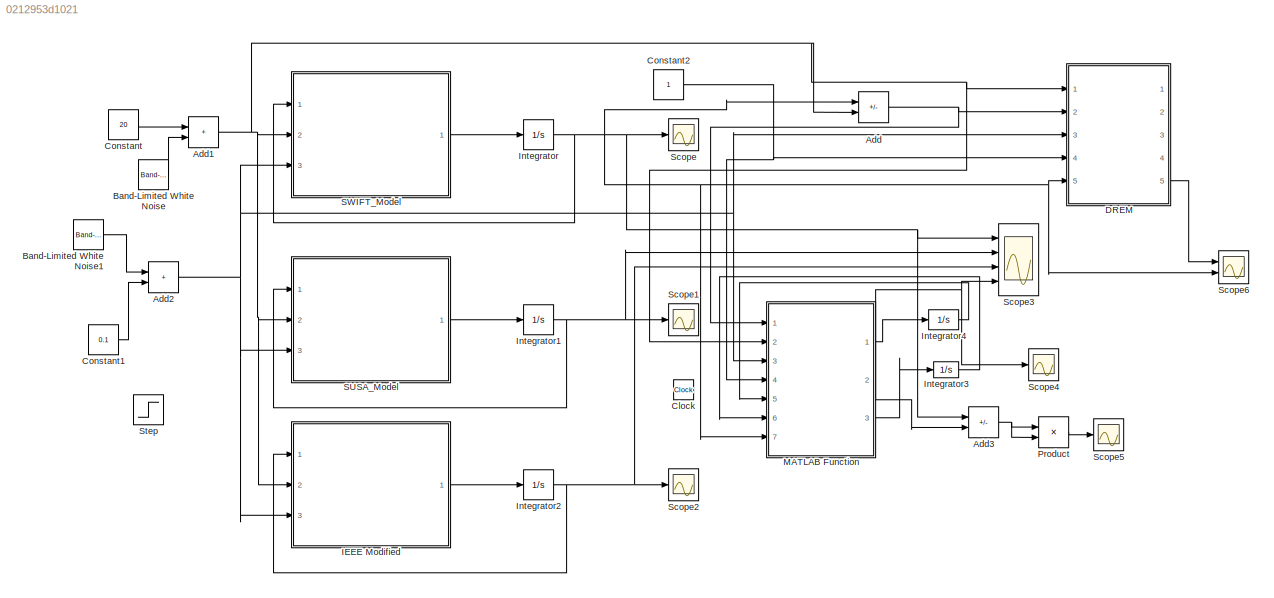
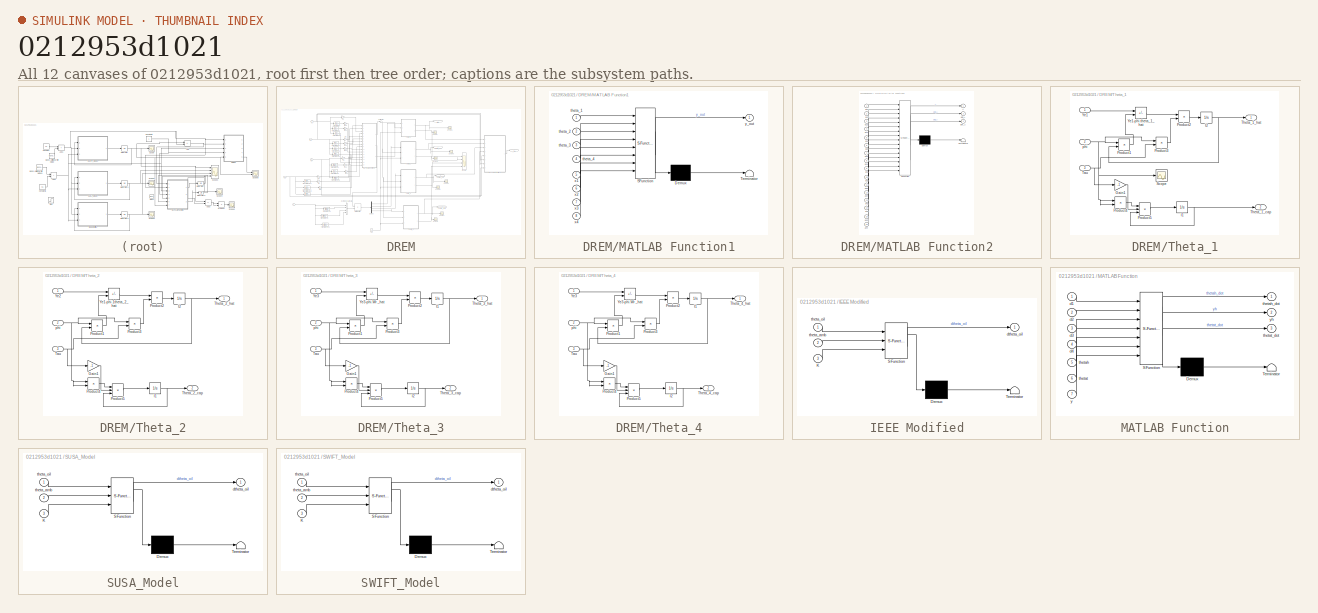
[diagram: thumbnail index - all 12 canvases of the model, root first then tree order]
MODEL slx_0212953d1021
KIND model
CONFIG AbsTol = auto
CONFIG FixedStep = auto
CONFIG InitFcn = d1=1;\nd2=1;\nd3=3\nd4=3;\nd5 = 5;\nd6 = 5;\nTau=9
CONFIG MaxStep = auto
CONFIG MinStep = auto
CONFIG RelTol = 1e-3
CONFIG SampleTimeConstraint = Unconstrained
CONFIG Solver = VariableStepAuto
CONFIG SolverMode = SingleTasking
CONFIG SolverName = VariableStepAuto
CONFIG StartTime = 0.0
CONFIG StopTime = 2000
BLOCK [Sum] Add
  IconShape = rectangular
  Inputs = +-
  Ports = [2, 1]
BLOCK [Sum] Add1
  IconShape = rectangular
  Ports = [2, 1]
BLOCK [Sum] Add2
  IconShape = rectangular
  Ports = [2, 1]
BLOCK [Sum] Add3
  IconShape = rectangular
  Inputs = +-
  Ports = [2, 1]
BLOCK [Reference] Band-Limited White Noise  REF=simulink/Sources/Band-Limited
White Noise
  Ports = [0, 1]
  SourceBlock = simulink/Sources/Band-Limited\nWhite Noise
  SourceType = Band-Limited White Noise.
BLOCK [Reference] Band-Limited White Noise1  REF=simulink/Sources/Band-Limited
White Noise
  Ports = [0, 1]
  SourceBlock = simulink/Sources/Band-Limited\nWhite Noise
  SourceType = Band-Limited White Noise.
BLOCK [Clock] Clock
BLOCK [Constant] Constant
  Value = 20
BLOCK [Constant] Constant1
  Value = 0.1
BLOCK [Constant] Constant2
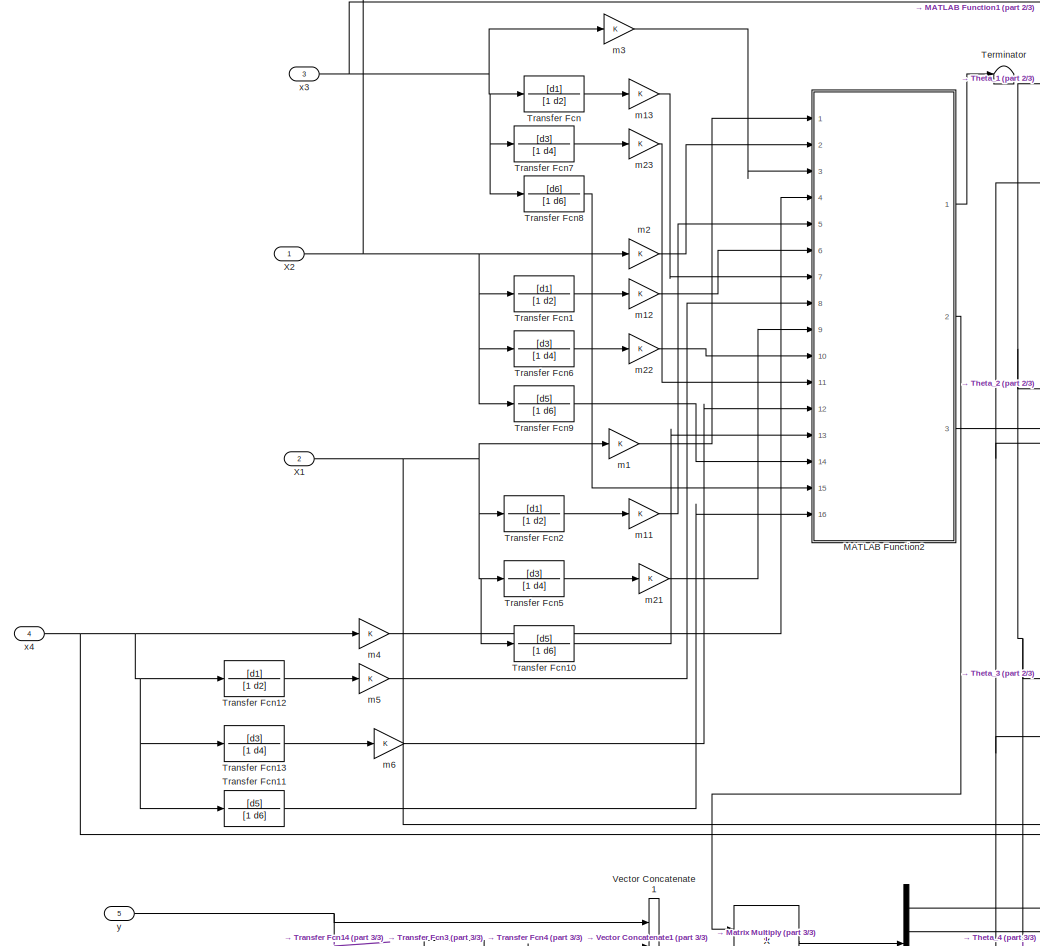
[diagram: DREM - part 1/3, left side, full height]
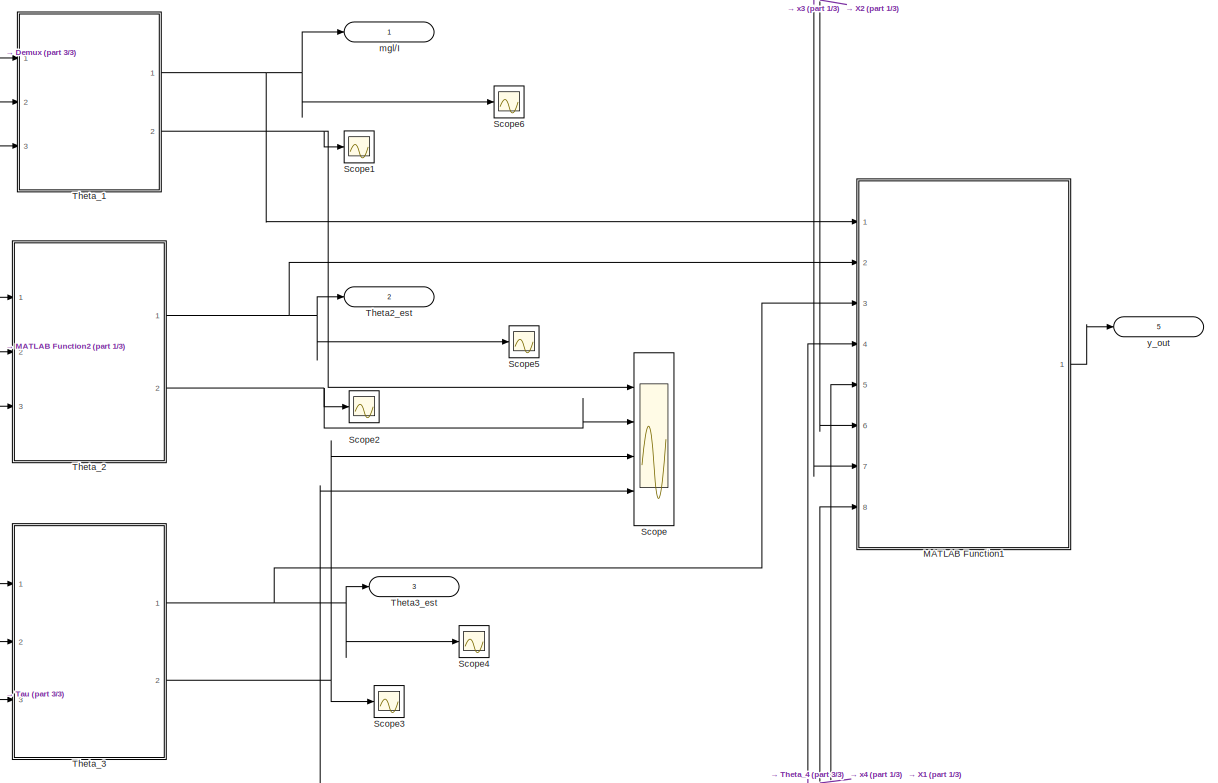
[diagram: DREM - part 2/3, middle right region]
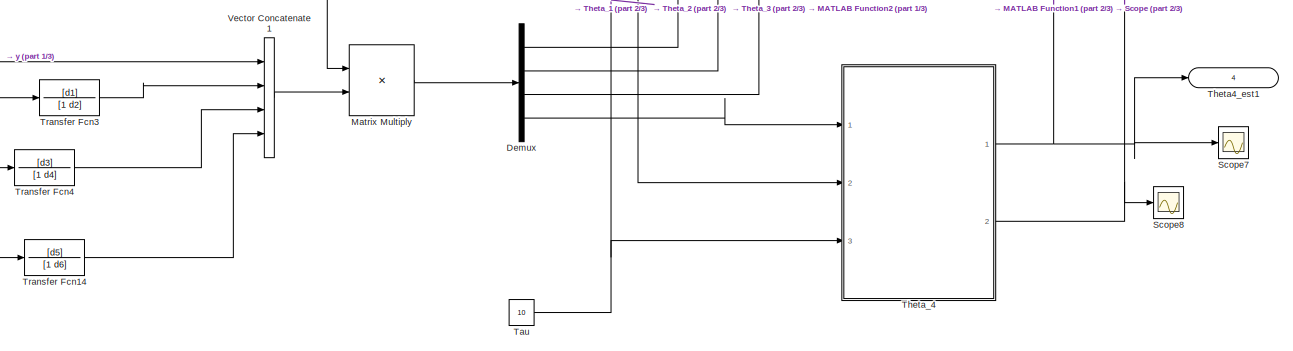
[diagram: DREM - part 3/3, bottom center region]
BLOCK [SubSystem] DREM
  Ports = [5, 5]
  RequestExecContextInheritance = off
BLOCK [Demux] DREM/Demux
  Ports = [1, 4]
BLOCK [SubSystem] DREM/MATLAB Function1
  ErrorFcn = Stateflow.Translate.translate
  PermitHierarchicalResolution = ExplicitOnly
  Ports = [8, 1]
  RequestExecContextInheritance = off
  SFBlockType = MATLAB Function
  TreatAsAtomicUnit = on
BLOCK [Demux] DREM/MATLAB Function1/ Demux 
  Outputs = 1
  Ports = [1, 1]
BLOCK [S-Function] DREM/MATLAB Function1/ SFunction 
  EnableBusSupport = on
  FunctionName = sf_sfun
  PortCounts = [8 2]
  Ports = [8, 2]
  SFunctionDeploymentMode = off
  Tag = Stateflow S-Function Xmer_Susa_swift_2016a 5
BLOCK [Terminator] DREM/MATLAB Function1/ Terminator 
BLOCK [Inport] DREM/MATLAB Function1/theta_1
BLOCK [Inport] DREM/MATLAB Function1/theta_2
  Port = 2
BLOCK [Inport] DREM/MATLAB Function1/theta_3
  Port = 3
BLOCK [Inport] DREM/MATLAB Function1/theta_4
  Port = 4
BLOCK [Inport] DREM/MATLAB Function1/x1
  Port = 5
BLOCK [Inport] DREM/MATLAB Function1/x2
  Port = 6
BLOCK [Inport] DREM/MATLAB Function1/x3
  Port = 7
BLOCK [Inport] DREM/MATLAB Function1/x4
  Port = 8
BLOCK [Outport] DREM/MATLAB Function1/y_out
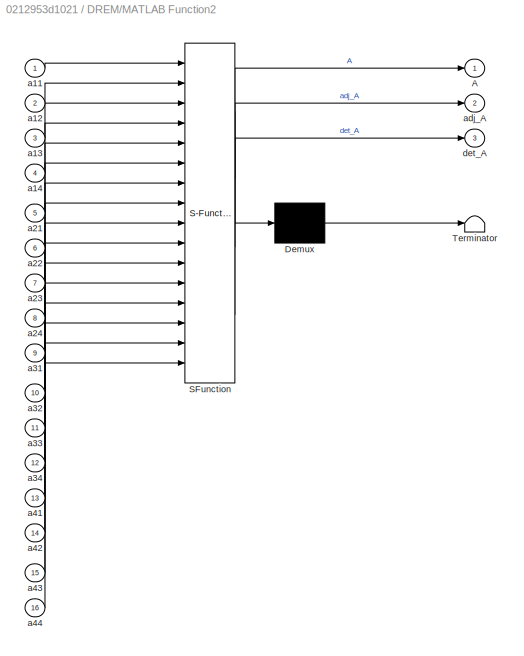
BLOCK [SubSystem] DREM/MATLAB Function2
  ErrorFcn = Stateflow.Translate.translate
  PermitHierarchicalResolution = ExplicitOnly
  Ports = [16, 3]
  RequestExecContextInheritance = off
  SFBlockType = MATLAB Function
  TreatAsAtomicUnit = on
BLOCK [Demux] DREM/MATLAB Function2/ Demux 
  Outputs = 1
  Ports = [1, 1]
BLOCK [S-Function] DREM/MATLAB Function2/ SFunction 
  EnableBusSupport = on
  FunctionName = sf_sfun
  PortCounts = [16 4]
  Ports = [16, 4]
  SFunctionDeploymentMode = off
  Tag = Stateflow S-Function Xmer_Susa_swift_2016a 4
BLOCK [Terminator] DREM/MATLAB Function2/ Terminator 
BLOCK [Outport] DREM/MATLAB Function2/A
BLOCK [Inport] DREM/MATLAB Function2/a11
BLOCK [Inport] DREM/MATLAB Function2/a12
  Port = 2
BLOCK [Inport] DREM/MATLAB Function2/a13
  Port = 3
BLOCK [Inport] DREM/MATLAB Function2/a14
  Port = 4
BLOCK [Inport] DREM/MATLAB Function2/a21
  Port = 5
BLOCK [Inport] DREM/MATLAB Function2/a22
  Port = 6
BLOCK [Inport] DREM/MATLAB Function2/a23
  Port = 7
BLOCK [Inport] DREM/MATLAB Function2/a24
  Port = 8
BLOCK [Inport] DREM/MATLAB Function2/a31
  Port = 9
BLOCK [Inport] DREM/MATLAB Function2/a32
  Port = 10
BLOCK [Inport] DREM/MATLAB Function2/a33
  Port = 11
BLOCK [Inport] DREM/MATLAB Function2/a34
  Port = 12
BLOCK [Inport] DREM/MATLAB Function2/a41
  Port = 13
BLOCK [Inport] DREM/MATLAB Function2/a42
  Port = 14
BLOCK [Inport] DREM/MATLAB Function2/a43
  Port = 15
BLOCK [Inport] DREM/MATLAB Function2/a44
  Port = 16
BLOCK [Outport] DREM/MATLAB Function2/adj_A
  Port = 2
BLOCK [Outport] DREM/MATLAB Function2/det_A
  Port = 3
BLOCK [Product] DREM/Matrix Multiply
  Multiplication = Matrix(*)
  Ports = [2, 1]
BLOCK [Scope] DREM/Scope
  Floating = off
  NumInputPorts = 4
  Ports = [4]
  ScopeSpecificationString = Simulink.scopes.TimeScopeBlockCfg('CurrentConfiguration', extmgr.ConfigurationSet(extmgr.Configuration('Core','General UI',true),extmgr.Configuration('Core','Source UI',true),extmgr.Configuration('Sources','WiredSimulink',true),extmgr.Configuration('Visuals','Time Domain',true,'SerializedDisplays',{struct('MinYLimReal','-1500.00002','MaxYLimReal','13500.00017','YLabelReal','','MinYLimMag','  0.000...<+1490ch>
BLOCK [Scope] DREM/Scope1
  Floating = off
  NumInputPorts = 1
  Ports = [1]
  ScopeSpecificationString = Simulink.scopes.TimeScopeBlockCfg('CurrentConfiguration', extmgr.ConfigurationSet(extmgr.Configuration('Core','General UI',true),extmgr.Configuration('Core','Source UI',true),extmgr.Configuration('Sources','WiredSimulink',true,'DataLoggingVariableName','ScopeData1'),extmgr.Configuration('Visuals','Time Domain',true,'SerializedDisplays',{struct('MinYLimReal','9.7996','MaxYLimReal','9.80004','YLabel...<+1461ch>
BLOCK [Scope] DREM/Scope2
  Floating = off
  NumInputPorts = 1
  Ports = [1]
  ScopeSpecificationString = Simulink.scopes.TimeScopeBlockCfg('CurrentConfiguration', extmgr.ConfigurationSet(extmgr.Configuration('Core','General UI',true),extmgr.Configuration('Core','Source UI',true),extmgr.Configuration('Sources','WiredSimulink',true,'DataLoggingVariableName','ScopeData2'),extmgr.Configuration('Visuals','Time Domain',true,'SerializedDisplays',{struct('MinYLimReal','-1.00002','MaxYLimReal','-0.99985','YLa...<+1370ch>
BLOCK [Scope] DREM/Scope3
  Floating = off
  NumInputPorts = 1
  Ports = [1]
  ScopeSpecificationString = Simulink.scopes.TimeScopeBlockCfg('CurrentConfiguration', extmgr.ConfigurationSet(extmgr.Configuration('Core','General UI',true),extmgr.Configuration('Core','Source UI',true),extmgr.Configuration('Sources','WiredSimulink',true,'DataLoggingVariableName','ScopeData3'),extmgr.Configuration('Visuals','Time Domain',true,'SerializedDisplays',{struct('MinYLimReal','11999.99966','MaxYLimReal','12000.00004...<+1497ch>
BLOCK [Scope] DREM/Scope4
  Floating = off
  NumInputPorts = 1
  Ports = [1]
  ScopeSpecificationString = Simulink.scopes.TimeScopeBlockCfg('CurrentConfiguration', extmgr.ConfigurationSet(extmgr.Configuration('Core','General UI',true),extmgr.Configuration('Core','Source UI',true),extmgr.Configuration('Sources','WiredSimulink',true,'DataLoggingVariableName','ScopeData1'),extmgr.Configuration('Visuals','Time Domain',true,'SerializedDisplays',{struct('MinYLimReal','-0.0000016','MaxYLimReal','0.0000026','...<+1508ch>
BLOCK [Scope] DREM/Scope5
  Floating = off
  NumInputPorts = 1
  Ports = [1]
  ScopeSpecificationString = Simulink.scopes.TimeScopeBlockCfg('CurrentConfiguration', extmgr.ConfigurationSet(extmgr.Configuration('Core','General UI',true),extmgr.Configuration('Core','Source UI',true),extmgr.Configuration('Sources','WiredSimulink',true,'DataLoggingVariableName','ScopeData2'),extmgr.Configuration('Visuals','Time Domain',true,'SerializedDisplays',{struct('MinYLimReal','-0.125','MaxYLimReal','1.125','YLabelRe...<+1408ch>
BLOCK [Scope] DREM/Scope6
  Floating = off
  NumInputPorts = 1
  Ports = [1]
  ScopeSpecificationString = Simulink.scopes.TimeScopeBlockCfg('CurrentConfiguration', extmgr.ConfigurationSet(extmgr.Configuration('Core','General UI',true),extmgr.Configuration('Core','Source UI',true),extmgr.Configuration('Sources','WiredSimulink',true,'DataLoggingVariableName','ScopeData3'),extmgr.Configuration('Visuals','Time Domain',true,'SerializedDisplays',{struct('MinYLimReal','-0.125','MaxYLimReal','1.12501','YLabel...<+1417ch>
BLOCK [Scope] DREM/Scope7
  Floating = off
  NumInputPorts = 1
  Ports = [1]
  ScopeSpecificationString = Simulink.scopes.TimeScopeBlockCfg('CurrentConfiguration', extmgr.ConfigurationSet(extmgr.Configuration('Core','General UI',true),extmgr.Configuration('Core','Source UI',true),extmgr.Configuration('Sources','WiredSimulink',true,'DataLoggingVariableName','ScopeData1'),extmgr.Configuration('Visuals','Time Domain',true,'SerializedDisplays',{struct('MinYLimReal','-0.000008','MaxYLimReal','0.000007','YL...<+1500ch>
BLOCK [Scope] DREM/Scope8
  Floating = off
  NumInputPorts = 1
  Ports = [1]
  ScopeSpecificationString = Simulink.scopes.TimeScopeBlockCfg('CurrentConfiguration', extmgr.ConfigurationSet(extmgr.Configuration('Core','General UI',true),extmgr.Configuration('Core','Source UI',true),extmgr.Configuration('Sources','WiredSimulink',true,'DataLoggingVariableName','ScopeData2'),extmgr.Configuration('Visuals','Time Domain',true,'SerializedDisplays',{struct('MinYLimReal','-0.59753','MaxYLimReal','1.18275','YLab...<+1414ch>
BLOCK [Constant] DREM/Tau
  SampleTime = -1
  Value = 10
BLOCK [Terminator] DREM/Terminator
BLOCK [Outport] DREM/Theta2_est
  Port = 2
BLOCK [Outport] DREM/Theta3_est
  Port = 3
BLOCK [Outport] DREM/Theta4_est1
  Port = 4
BLOCK [SubSystem] DREM/Theta_1
  Ports = [3, 2]
  RequestExecContextInheritance = off
BLOCK [Gain] DREM/Theta_1/Gain1
  Gain = -1
BLOCK [Integrator] DREM/Theta_1/I1
  InitialCondition = 9.8
  Ports = [1, 1]
BLOCK [Integrator] DREM/Theta_1/I2
  Ports = [1, 1]
BLOCK [Product] DREM/Theta_1/Product1
  Ports = [2, 1]
BLOCK [Product] DREM/Theta_1/Product2
  Ports = [2, 1]
BLOCK [Product] DREM/Theta_1/Product3
  Ports = [2, 1]
BLOCK [Product] DREM/Theta_1/Product4
  Ports = [2, 1]
BLOCK [Product] DREM/Theta_1/Product5
  Inputs = 3
  Ports = [3, 1]
BLOCK [Scope] DREM/Theta_1/Scope
  Floating = off
  NumInputPorts = 1
  Ports = [1]
  ScopeSpecificationString = Simulink.scopes.TimeScopeBlockCfg('CurrentConfiguration', extmgr.ConfigurationSet(extmgr.Configuration('Core','General UI',true),extmgr.Configuration('Core','Source UI',true),extmgr.Configuration('Sources','WiredSimulink',true,'DataLoggingVariableName','ScopeData13'),extmgr.Configuration('Visuals','Time Domain',true,'SerializedDisplays',{struct('MinYLimReal','-0.000002','MaxYLimReal','0.0000041','...<+1402ch>
BLOCK [Inport] DREM/Theta_1/Tau
  Port = 3
BLOCK [Outport] DREM/Theta_1/Theta_1_cap
  Port = 2
BLOCK [Outport] DREM/Theta_1/Theta_1_hat
BLOCK [Inport] DREM/Theta_1/Ye1
BLOCK [Sum] DREM/Theta_1/Ye1-phi.theta_1_hat
  IconShape = rectangular
  Inputs = +-
  Ports = [2, 1]
BLOCK [Inport] DREM/Theta_1/phi
  Port = 2
BLOCK [SubSystem] DREM/Theta_2
  Ports = [3, 2]
  RequestExecContextInheritance = off
BLOCK [Gain] DREM/Theta_2/Gain1
  Gain = -1
BLOCK [Integrator] DREM/Theta_2/I1
  InitialCondition = 96.27
  Ports = [1, 1]
BLOCK [Integrator] DREM/Theta_2/I2
  Ports = [1, 1]
BLOCK [Product] DREM/Theta_2/Product1
  Ports = [2, 1]
BLOCK [Product] DREM/Theta_2/Product2
  Ports = [2, 1]
BLOCK [Product] DREM/Theta_2/Product3
  Ports = [2, 1]
BLOCK [Product] DREM/Theta_2/Product4
  Ports = [2, 1]
BLOCK [Product] DREM/Theta_2/Product5
  Inputs = 3
  Ports = [3, 1]
BLOCK [Inport] DREM/Theta_2/Tau
  Port = 3
BLOCK [Outport] DREM/Theta_2/Theta_2_cap
  Port = 2
BLOCK [Outport] DREM/Theta_2/Theta_2_hat
BLOCK [Sum] DREM/Theta_2/Ye1-phi.1theta_2_hat
  IconShape = rectangular
  Inputs = +-
  Ports = [2, 1]
BLOCK [Inport] DREM/Theta_2/Ye2
BLOCK [Inport] DREM/Theta_2/phi
  Port = 2
BLOCK [SubSystem] DREM/Theta_3
  Ports = [3, 2]
  RequestExecContextInheritance = off
BLOCK [Gain] DREM/Theta_3/Gain1
  Gain = -1
BLOCK [Integrator] DREM/Theta_3/I1
  Ports = [1, 1]
BLOCK [Integrator] DREM/Theta_3/I2
  InitialCondition = 12000
  Ports = [1, 1]
BLOCK [Product] DREM/Theta_3/Product1
  Ports = [2, 1]
BLOCK [Product] DREM/Theta_3/Product2
  Ports = [2, 1]
BLOCK [Product] DREM/Theta_3/Product3
  Ports = [2, 1]
BLOCK [Product] DREM/Theta_3/Product4
  Ports = [2, 1]
BLOCK [Product] DREM/Theta_3/Product5
  Inputs = 3
  Ports = [3, 1]
BLOCK [Inport] DREM/Theta_3/Tau
  Port = 3
BLOCK [Outport] DREM/Theta_3/Theta_3_cap
  Port = 2
BLOCK [Outport] DREM/Theta_3/Theta_3_hat
BLOCK [Inport] DREM/Theta_3/Ye3
BLOCK [Sum] DREM/Theta_3/Ye3-phi.Wr  _hat
  IconShape = rectangular
  Inputs = +-
  Ports = [2, 1]
BLOCK [Inport] DREM/Theta_3/phi
  Port = 2
BLOCK [SubSystem] DREM/Theta_4
  Ports = [3, 2]
  RequestExecContextInheritance = off
BLOCK [Gain] DREM/Theta_4/Gain1
  Gain = -1
BLOCK [Integrator] DREM/Theta_4/I1
  Ports = [1, 1]
BLOCK [Integrator] DREM/Theta_4/I2
  InitialCondition = 100
  Ports = [1, 1]
BLOCK [Product] DREM/Theta_4/Product1
  Ports = [2, 1]
BLOCK [Product] DREM/Theta_4/Product2
  Ports = [2, 1]
BLOCK [Product] DREM/Theta_4/Product3
  Ports = [2, 1]
BLOCK [Product] DREM/Theta_4/Product4
  Ports = [2, 1]
BLOCK [Product] DREM/Theta_4/Product5
  Inputs = 3
  Ports = [3, 1]
BLOCK [Inport] DREM/Theta_4/Tau
  Port = 3
BLOCK [Outport] DREM/Theta_4/Theta_4_cap
  Port = 2
BLOCK [Outport] DREM/Theta_4/Theta_4_hat
BLOCK [Inport] DREM/Theta_4/Ye3
BLOCK [Sum] DREM/Theta_4/Ye3-phi.Wr  _hat
  IconShape = rectangular
  Inputs = +-
  Ports = [2, 1]
BLOCK [Inport] DREM/Theta_4/phi
  Port = 2
BLOCK [TransferFcn] DREM/Transfer Fcn
  Denominator = [1 d2]
  Numerator = [d1]
BLOCK [TransferFcn] DREM/Transfer Fcn1
  Denominator = [1 d2]
  Numerator = [d1]
BLOCK [TransferFcn] DREM/Transfer Fcn10
  Denominator = [1 d6]
  Numerator = [d5]
BLOCK [TransferFcn] DREM/Transfer Fcn11
  Denominator = [1 d6]
  Numerator = [d5]
BLOCK [TransferFcn] DREM/Transfer Fcn12
  Denominator = [1 d2]
  Numerator = [d1]
BLOCK [TransferFcn] DREM/Transfer Fcn13
  Denominator = [1 d4]
  Numerator = [d3]
BLOCK [TransferFcn] DREM/Transfer Fcn14
  Denominator = [1 d6]
  Numerator = [d5]
BLOCK [TransferFcn] DREM/Transfer Fcn2
  Denominator = [1 d2]
  Numerator = [d1]
BLOCK [TransferFcn] DREM/Transfer Fcn3
  Denominator = [1 d2]
  Numerator = [d1]
BLOCK [TransferFcn] DREM/Transfer Fcn4
  Denominator = [1 d4]
  Numerator = [d3]
BLOCK [TransferFcn] DREM/Transfer Fcn5
  Denominator = [1 d4]
  Numerator = [d3]
BLOCK [TransferFcn] DREM/Transfer Fcn6
  Denominator = [1 d4]
  Numerator = [d3]
BLOCK [TransferFcn] DREM/Transfer Fcn7
  Denominator = [1 d4]
  Numerator = [d3]
BLOCK [TransferFcn] DREM/Transfer Fcn8
  Denominator = [1 d6]
  Numerator = [d6]
BLOCK [TransferFcn] DREM/Transfer Fcn9
  Denominator = [1 d6]
  Numerator = [d5]
BLOCK [Concatenate] DREM/Vector Concatenate1
  NumInputs = 4
  Ports = [4, 1]
BLOCK [Inport] DREM/X1
  Port = 2
BLOCK [Inport] DREM/X2
BLOCK [Gain] DREM/m1
BLOCK [Gain] DREM/m11
BLOCK [Gain] DREM/m12
BLOCK [Gain] DREM/m13
BLOCK [Gain] DREM/m2
BLOCK [Gain] DREM/m21
BLOCK [Gain] DREM/m22
BLOCK [Gain] DREM/m23
BLOCK [Gain] DREM/m3
BLOCK [Gain] DREM/m4
BLOCK [Gain] DREM/m5
BLOCK [Gain] DREM/m6
BLOCK [Outport] DREM/mgl//I
BLOCK [Inport] DREM/x3
  Port = 3
BLOCK [Inport] DREM/x4
  Port = 4
BLOCK [Inport] DREM/y
  Port = 5
BLOCK [Outport] DREM/y_out
  Port = 5
BLOCK [SubSystem] IEEE Modified
  ErrorFcn = Stateflow.Translate.translate
  PermitHierarchicalResolution = ExplicitOnly
  Ports = [3, 1]
  RequestExecContextInheritance = off
  SFBlockType = MATLAB Function
  TreatAsAtomicUnit = on
BLOCK [Demux] IEEE Modified/ Demux 
  Outputs = 1
  Ports = [1, 1]
BLOCK [S-Function] IEEE Modified/ SFunction 
  EnableBusSupport = on
  FunctionName = sf_sfun
  PortCounts = [3 2]
  Ports = [3, 2]
  SFunctionDeploymentMode = off
  Tag = Stateflow S-Function Xmer_Susa_swift_2016a 3
BLOCK [Terminator] IEEE Modified/ Terminator 
BLOCK [Inport] IEEE Modified/K
  Port = 3
BLOCK [Outport] IEEE Modified/dtheta_oil
BLOCK [Inport] IEEE Modified/theta_amb
  Port = 2
BLOCK [Inport] IEEE Modified/theta_oil
BLOCK [Integrator] Integrator
  InitialCondition = 42
  Ports = [1, 1]
BLOCK [Integrator] Integrator1
  InitialCondition = 42
  Ports = [1, 1]
BLOCK [Integrator] Integrator2
  InitialCondition = 42
  Ports = [1, 1]
BLOCK [Integrator] Integrator3
  InitialCondition = 42
  Ports = [1, 1]
BLOCK [Integrator] Integrator4
  InitialCondition = 42
  Ports = [1, 1]
BLOCK [SubSystem] MATLAB Function
  ErrorFcn = Stateflow.Translate.translate
  PermitHierarchicalResolution = ExplicitOnly
  Ports = [7, 3]
  RequestExecContextInheritance = off
  SFBlockType = MATLAB Function
  TreatAsAtomicUnit = on
BLOCK [Demux] MATLAB Function/ Demux 
  Outputs = 1
  Ports = [1, 1]
BLOCK [S-Function] MATLAB Function/ SFunction 
  EnableBusSupport = on
  FunctionName = sf_sfun
  PortCounts = [7 4]
  Ports = [7, 4]
  SFunctionDeploymentMode = off
  Tag = Stateflow S-Function Xmer_Susa_swift_2016a 6
BLOCK [Terminator] MATLAB Function/ Terminator 
BLOCK [Inport] MATLAB Function/d1
BLOCK [Inport] MATLAB Function/d2
  Port = 2
BLOCK [Inport] MATLAB Function/d3
  Port = 3
BLOCK [Inport] MATLAB Function/d4
  Port = 4
BLOCK [Inport] MATLAB Function/thetah
  Port = 5
BLOCK [Outport] MATLAB Function/thetah_dot
BLOCK [Inport] MATLAB Function/thetat
  Port = 6
BLOCK [Outport] MATLAB Function/thetat_dot
  Port = 3
BLOCK [Inport] MATLAB Function/y
  Port = 7
BLOCK [Outport] MATLAB Function/yh
  Port = 2
BLOCK [Product] Product
  Ports = [2, 1]
BLOCK [SubSystem] SUSA_Model
  ErrorFcn = Stateflow.Translate.translate
  PermitHierarchicalResolution = ExplicitOnly
  Ports = [3, 1]
  RequestExecContextInheritance = off
  SFBlockType = MATLAB Function
  TreatAsAtomicUnit = on
BLOCK [Demux] SUSA_Model/ Demux 
  Outputs = 1
  Ports = [1, 1]
BLOCK [S-Function] SUSA_Model/ SFunction 
  EnableBusSupport = on
  FunctionName = sf_sfun
  PortCounts = [3 2]
  Ports = [3, 2]
  SFunctionDeploymentMode = off
  Tag = Stateflow S-Function Xmer_Susa_swift_2016a 1
BLOCK [Terminator] SUSA_Model/ Terminator 
BLOCK [Inport] SUSA_Model/K
  Port = 3
BLOCK [Outport] SUSA_Model/dtheta_oil
BLOCK [Inport] SUSA_Model/theta_amb
  Port = 2
BLOCK [Inport] SUSA_Model/theta_oil
BLOCK [SubSystem] SWIFT_Model
  ErrorFcn = Stateflow.Translate.translate
  PermitHierarchicalResolution = ExplicitOnly
  Ports = [3, 1]
  RequestExecContextInheritance = off
  SFBlockType = MATLAB Function
  TreatAsAtomicUnit = on
BLOCK [Demux] SWIFT_Model/ Demux 
  Outputs = 1
  Ports = [1, 1]
BLOCK [S-Function] SWIFT_Model/ SFunction 
  EnableBusSupport = on
  FunctionName = sf_sfun
  PortCounts = [3 2]
  Ports = [3, 2]
  SFunctionDeploymentMode = off
  Tag = Stateflow S-Function Xmer_Susa_swift_2016a 2
BLOCK [Terminator] SWIFT_Model/ Terminator 
BLOCK [Inport] SWIFT_Model/K
  Port = 3
BLOCK [Outport] SWIFT_Model/dtheta_oil
BLOCK [Inport] SWIFT_Model/theta_amb
  Port = 2
BLOCK [Inport] SWIFT_Model/theta_oil
BLOCK [Scope] Scope
  Floating = off
  NumInputPorts = 1
  Ports = [1]
  ScopeSpecificationString = Simulink.scopes.TimeScopeBlockCfg('CurrentConfiguration', extmgr.ConfigurationSet(extmgr.Configuration('Core','General UI',true),extmgr.Configuration('Core','Source UI',true),extmgr.Configuration('Sources','WiredSimulink',true),extmgr.Configuration('Visuals','Time Domain',true,'SerializedDisplays',{struct('MinYLimReal','32.32294','MaxYLimReal','129.09355','YLabelReal','','MinYLimMag','32.32294','M...<+1340ch>
BLOCK [Scope] Scope1
  Floating = off
  NumInputPorts = 1
  Ports = [1]
  ScopeSpecificationString = Simulink.scopes.TimeScopeBlockCfg('CurrentConfiguration', extmgr.ConfigurationSet(extmgr.Configuration('Core','General UI',true),extmgr.Configuration('Core','Source UI',true),extmgr.Configuration('Sources','WiredSimulink',true,'DataLoggingVariableName','ScopeData1'),extmgr.Configuration('Visuals','Time Domain',true,'SerializedDisplays',{struct('MinYLimReal','35.34653','MaxYLimReal','101.88121','YL...<+1380ch>
BLOCK [Scope] Scope2
  Floating = off
  NumInputPorts = 1
  Ports = [1]
  ScopeSpecificationString = Simulink.scopes.TimeScopeBlockCfg('CurrentConfiguration', extmgr.ConfigurationSet(extmgr.Configuration('Core','General UI',true),extmgr.Configuration('Core','Source UI',true),extmgr.Configuration('Sources','WiredSimulink',true,'DataLoggingVariableName','ScopeData2'),extmgr.Configuration('Visuals','Time Domain',true,'SerializedDisplays',{struct('MinYLimReal','37.04246','MaxYLimReal','86.61783','YLa...<+1376ch>
BLOCK [Scope] Scope3
  Floating = off
  NumInputPorts = 4
  Ports = [4]
  ScopeSpecificationString = Simulink.scopes.TimeScopeBlockCfg('CurrentConfiguration', extmgr.ConfigurationSet(extmgr.Configuration('Core','General UI',true),extmgr.Configuration('Core','Source UI',true),extmgr.Configuration('Sources','WiredSimulink',true,'DataLoggingVariableName','ScopeData3'),extmgr.Configuration('Visuals','Time Domain',true,'SerializedDisplays',{struct('MinYLimReal','87.56612','MaxYLimReal','88.06429','YLa...<+1567ch>
BLOCK [Scope] Scope4
  Floating = off
  NumInputPorts = 1
  Ports = [1]
  ScopeSpecificationString = Simulink.scopes.TimeScopeBlockCfg('CurrentConfiguration', extmgr.ConfigurationSet(extmgr.Configuration('Core','General UI',true),extmgr.Configuration('Core','Source UI',true),extmgr.Configuration('Sources','WiredSimulink',true,'DataLoggingVariableName','ScopeData1'),extmgr.Configuration('Visuals','Time Domain',true,'SerializedDisplays',{struct('MinYLimReal','-482.62578','MaxYLimReal','2151.98958',...<+1538ch>
BLOCK [Scope] Scope5
  Floating = off
  NumInputPorts = 1
  Ports = [1]
  ScopeSpecificationString = Simulink.scopes.TimeScopeBlockCfg('CurrentConfiguration', extmgr.ConfigurationSet(extmgr.Configuration('Core','General UI',true),extmgr.Configuration('Core','Source UI',true),extmgr.Configuration('Sources','WiredSimulink',true,'DataLoggingVariableName','ScopeData2'),extmgr.Configuration('Visuals','Time Domain',true,'SerializedDisplays',{struct('MinYLimReal','-426208.22875','MaxYLimReal','3835874.0...<+1518ch>
BLOCK [Scope] Scope6
  Floating = off
  NumInputPorts = 2
  Ports = [2]
  ScopeSpecificationString = Simulink.scopes.TimeScopeBlockCfg('CurrentConfiguration', extmgr.ConfigurationSet(extmgr.Configuration('Core','General UI',true),extmgr.Configuration('Core','Source UI',true),extmgr.Configuration('Sources','WiredSimulink',true,'DataLoggingVariableName','ScopeData3'),extmgr.Configuration('Visuals','Time Domain',true,'SerializedDisplays',{struct('MinYLimReal','-14.92706','MaxYLimReal','134.34355','Y...<+1464ch>
BLOCK [Step] Step
  SampleTime = 0
NET Add1:1 -> Add:2, DREM:1, IEEE Modified:2, MATLAB Function:2, SUSA_Model:2, SWIFT_Model:2
NET Add2:1 -> DREM:3, IEEE Modified:3, MATLAB Function:3, SUSA_Model:3, SWIFT_Model:3
NET Add3:1 -> Product:1, Product:2
NET Add:1 -> DREM:2, MATLAB Function:1
LINE Band-Limited White Noise1:1 -> Add2:1
LINE Band-Limited White Noise:1 -> Add1:2
LINE Constant1:1 -> Add2:2
NET Constant2:1 -> DREM:4, MATLAB Function:4
LINE Constant:1 -> Add1:1
LINE DREM/Demux:1 -> DREM/Theta_1:1
LINE DREM/Demux:2 -> DREM/Theta_2:1
LINE DREM/Demux:3 -> DREM/Theta_3:1
LINE DREM/Demux:4 -> DREM/Theta_4:1
LINE DREM/MATLAB Function1:1 -> DREM/y_out:1
LINE DREM/MATLAB Function2:1 -> DREM/Terminator:1
LINE DREM/MATLAB Function2:2 -> DREM/Matrix Multiply:1
NET DREM/MATLAB Function2:3 -> DREM/Theta_1:2, DREM/Theta_2:2, DREM/Theta_3:2, DREM/Theta_4:2
LINE DREM/Matrix Multiply:1 -> DREM/Demux:1
NET DREM/Tau:1 -> DREM/Theta_1:3, DREM/Theta_2:3, DREM/Theta_3:3, DREM/Theta_4:3
LINE DREM/Theta_1/Gain1:1 -> DREM/Theta_1/Product5:2
NET DREM/Theta_1/I1:1 -> DREM/Theta_1/Product5:3, DREM/Theta_1/Theta_1_cap:1
NET DREM/Theta_1/I2:1 -> DREM/Theta_1/Product1:2, DREM/Theta_1/Theta_1_hat:1
LINE DREM/Theta_1/Product1:1 -> DREM/Theta_1/Ye1-phi.theta_1_hat:2
LINE DREM/Theta_1/Product2:1 -> DREM/Theta_1/I2:1
LINE DREM/Theta_1/Product3:1 -> DREM/Theta_1/Product2:2
LINE DREM/Theta_1/Product4:1 -> DREM/Theta_1/Product5:1
LINE DREM/Theta_1/Product5:1 -> DREM/Theta_1/I1:1
NET DREM/Theta_1/Tau:1 -> DREM/Theta_1/Gain1:1, DREM/Theta_1/Product3:2
LINE DREM/Theta_1/Ye1-phi.theta_1_hat:1 -> DREM/Theta_1/Product2:1
LINE DREM/Theta_1/Ye1:1 -> DREM/Theta_1/Ye1-phi.theta_1_hat:1
NET DREM/Theta_1/phi:1 -> DREM/Theta_1/Product1:1, DREM/Theta_1/Product3:1, DREM/Theta_1/Product4:1, DREM/Theta_1/Product4:2, DREM/Theta_1/Scope:1
NET DREM/Theta_1:1 -> DREM/MATLAB Function1:1, DREM/Scope6:1, DREM/mgl//I:1
NET DREM/Theta_1:2 -> DREM/Scope1:1, DREM/Scope:1
LINE DREM/Theta_2/Gain1:1 -> DREM/Theta_2/Product5:2
NET DREM/Theta_2/I1:1 -> DREM/Theta_2/Product5:3, DREM/Theta_2/Theta_2_cap:1
NET DREM/Theta_2/I2:1 -> DREM/Theta_2/Product1:2, DREM/Theta_2/Theta_2_hat:1
LINE DREM/Theta_2/Product1:1 -> DREM/Theta_2/Ye1-phi.1theta_2_hat:2
LINE DREM/Theta_2/Product2:1 -> DREM/Theta_2/I2:1
LINE DREM/Theta_2/Product3:1 -> DREM/Theta_2/Product2:2
LINE DREM/Theta_2/Product4:1 -> DREM/Theta_2/Product5:1
LINE DREM/Theta_2/Product5:1 -> DREM/Theta_2/I1:1
NET DREM/Theta_2/Tau:1 -> DREM/Theta_2/Gain1:1, DREM/Theta_2/Product3:2
LINE DREM/Theta_2/Ye1-phi.1theta_2_hat:1 -> DREM/Theta_2/Product2:1
LINE DREM/Theta_2/Ye2:1 -> DREM/Theta_2/Ye1-phi.1theta_2_hat:1
NET DREM/Theta_2/phi:1 -> DREM/Theta_2/Product1:1, DREM/Theta_2/Product3:1, DREM/Theta_2/Product4:1, DREM/Theta_2/Product4:2
NET DREM/Theta_2:1 -> DREM/MATLAB Function1:2, DREM/Scope5:1, DREM/Theta2_est:1
NET DREM/Theta_2:2 -> DREM/Scope2:1, DREM/Scope:2
LINE DREM/Theta_3/Gain1:1 -> DREM/Theta_3/Product5:2
NET DREM/Theta_3/I1:1 -> DREM/Theta_3/Product1:2, DREM/Theta_3/Theta_3_hat:1
NET DREM/Theta_3/I2:1 -> DREM/Theta_3/Product5:3, DREM/Theta_3/Theta_3_cap:1
LINE DREM/Theta_3/Product1:1 -> DREM/Theta_3/Ye3-phi.Wr  _hat:2
LINE DREM/Theta_3/Product2:1 -> DREM/Theta_3/I1:1
LINE DREM/Theta_3/Product3:1 -> DREM/Theta_3/Product2:2
LINE DREM/Theta_3/Product4:1 -> DREM/Theta_3/Product5:1
LINE DREM/Theta_3/Product5:1 -> DREM/Theta_3/I2:1
NET DREM/Theta_3/Tau:1 -> DREM/Theta_3/Gain1:1, DREM/Theta_3/Product3:2
LINE DREM/Theta_3/Ye3-phi.Wr  _hat:1 -> DREM/Theta_3/Product2:1
LINE DREM/Theta_3/Ye3:1 -> DREM/Theta_3/Ye3-phi.Wr  _hat:1
NET DREM/Theta_3/phi:1 -> DREM/Theta_3/Product1:1, DREM/Theta_3/Product3:1, DREM/Theta_3/Product4:1, DREM/Theta_3/Product4:2
NET DREM/Theta_3:1 -> DREM/MATLAB Function1:3, DREM/Scope4:1, DREM/Theta3_est:1
NET DREM/Theta_3:2 -> DREM/Scope3:1, DREM/Scope:3
LINE DREM/Theta_4/Gain1:1 -> DREM/Theta_4/Product5:2
NET DREM/Theta_4/I1:1 -> DREM/Theta_4/Product1:2, DREM/Theta_4/Theta_4_hat:1
NET DREM/Theta_4/I2:1 -> DREM/Theta_4/Product5:3, DREM/Theta_4/Theta_4_cap:1
LINE DREM/Theta_4/Product1:1 -> DREM/Theta_4/Ye3-phi.Wr  _hat:2
LINE DREM/Theta_4/Product2:1 -> DREM/Theta_4/I1:1
LINE DREM/Theta_4/Product3:1 -> DREM/Theta_4/Product2:2
LINE DREM/Theta_4/Product4:1 -> DREM/Theta_4/Product5:1
LINE DREM/Theta_4/Product5:1 -> DREM/Theta_4/I2:1
NET DREM/Theta_4/Tau:1 -> DREM/Theta_4/Gain1:1, DREM/Theta_4/Product3:2
LINE DREM/Theta_4/Ye3-phi.Wr  _hat:1 -> DREM/Theta_4/Product2:1
LINE DREM/Theta_4/Ye3:1 -> DREM/Theta_4/Ye3-phi.Wr  _hat:1
NET DREM/Theta_4/phi:1 -> DREM/Theta_4/Product1:1, DREM/Theta_4/Product3:1, DREM/Theta_4/Product4:1, DREM/Theta_4/Product4:2
NET DREM/Theta_4:1 -> DREM/MATLAB Function1:4, DREM/Scope7:1, DREM/Theta4_est1:1
NET DREM/Theta_4:2 -> DREM/Scope8:1, DREM/Scope:4
LINE DREM/Transfer Fcn10:1 -> DREM/MATLAB Function2:13
LINE DREM/Transfer Fcn11:1 -> DREM/MATLAB Function2:16
LINE DREM/Transfer Fcn12:1 -> DREM/m5:1
LINE DREM/Transfer Fcn13:1 -> DREM/m6:1
LINE DREM/Transfer Fcn14:1 -> DREM/Vector Concatenate1:4
LINE DREM/Transfer Fcn1:1 -> DREM/m12:1
LINE DREM/Transfer Fcn2:1 -> DREM/m11:1
LINE DREM/Transfer Fcn3:1 -> DREM/Vector Concatenate1:2
LINE DREM/Transfer Fcn4:1 -> DREM/Vector Concatenate1:3
LINE DREM/Transfer Fcn5:1 -> DREM/m21:1
LINE DREM/Transfer Fcn6:1 -> DREM/m22:1
LINE DREM/Transfer Fcn7:1 -> DREM/m23:1
LINE DREM/Transfer Fcn8:1 -> DREM/MATLAB Function2:15
LINE DREM/Transfer Fcn9:1 -> DREM/MATLAB Function2:14
LINE DREM/Transfer Fcn:1 -> DREM/m13:1
LINE DREM/Vector Concatenate1:1 -> DREM/Matrix Multiply:2
NET DREM/X1:1 -> DREM/MATLAB Function1:5, DREM/Transfer Fcn10:1, DREM/Transfer Fcn2:1, DREM/Transfer Fcn5:1, DREM/m1:1
NET DREM/X2:1 -> DREM/MATLAB Function1:6, DREM/Transfer Fcn1:1, DREM/Transfer Fcn6:1, DREM/Transfer Fcn9:1, DREM/m2:1
LINE DREM/m11:1 -> DREM/MATLAB Function2:5
LINE DREM/m12:1 -> DREM/MATLAB Function2:6
LINE DREM/m13:1 -> DREM/MATLAB Function2:7
LINE DREM/m1:1 -> DREM/MATLAB Function2:1
LINE DREM/m21:1 -> DREM/MATLAB Function2:9
LINE DREM/m22:1 -> DREM/MATLAB Function2:10
LINE DREM/m23:1 -> DREM/MATLAB Function2:11
LINE DREM/m2:1 -> DREM/MATLAB Function2:2
LINE DREM/m3:1 -> DREM/MATLAB Function2:3
LINE DREM/m4:1 -> DREM/MATLAB Function2:4
LINE DREM/m5:1 -> DREM/MATLAB Function2:8
LINE DREM/m6:1 -> DREM/MATLAB Function2:12
NET DREM/x3:1 -> DREM/MATLAB Function1:7, DREM/Transfer Fcn7:1, DREM/Transfer Fcn8:1, DREM/Transfer Fcn:1, DREM/m3:1
NET DREM/x4:1 -> DREM/MATLAB Function1:8, DREM/Transfer Fcn11:1, DREM/Transfer Fcn12:1, DREM/Transfer Fcn13:1, DREM/m4:1
NET DREM/y:1 -> DREM/Transfer Fcn14:1, DREM/Transfer Fcn3:1, DREM/Transfer Fcn4:1, DREM/Vector Concatenate1:1
LINE DREM:5 -> Scope6:1
LINE IEEE Modified:1 -> Integrator2:1
NET Integrator1:1 -> SUSA_Model:1, Scope1:1, Scope3:2
NET Integrator2:1 -> IEEE Modified:1, Scope2:1, Scope3:3
LINE Integrator3:1 -> MATLAB Function:6
LINE Integrator4:1 -> MATLAB Function:5
NET Integrator:1 -> Add3:1, Add:1, DREM:5, MATLAB Function:7, SWIFT_Model:1, Scope3:1, Scope6:2, Scope:1
LINE MATLAB Function:1 -> Integrator4:1
NET MATLAB Function:2 -> Add3:2, Scope3:4, Scope4:1
LINE MATLAB Function:3 -> Integrator3:1
LINE Product:1 -> Scope5:1
LINE SUSA_Model:1 -> Integrator1:1
LINE SWIFT_Model:1 -> Integrator:1
note: NET lines group one-source signal fan-out (src -> all destinations, sorted); 1:1 wires keep LINE
CHART SUSA_Model states=1 transitions=1
  STATE_LABEL 'eML_blk_kernel()'
  STATE_LABEL 'SCRIPT:\nfunction dtheta_oil = fcn(theta_oil, theta_amb, K)\n%Parameters\nDel_theta_oilR=48;\nR=6;\nn=0.8;\ntau_oilR=150;\ntheta_oilR=70;\n%theta_amb=35;\n%K=0.85;\nA=1.3573e-6*exp((2797.3)/(theta_oil+273));\nB=1.3573e-6*exp((2797.3)/(theta_oilR+273));\na=(1-n)/n;\nmu_pu=A/B;\ndtheta_oil =(((Del_theta_oilR))/tau_oilR)*[(K*K*R+1)/(R+1)]-(1/tau_oilR)*[((theta_oil-theta_amb)^(1/n))/(mu_pu*theta_oilR)^a];\n'
CHART SWIFT_Model states=1 transitions=1
  STATE_LABEL 'eML_blk_kernel()'
  STATE_LABEL 'SCRIPT:\nfunction dtheta_oil = fcn(theta_oil, theta_amb, K)\n%Parameters\nDel_theta_oilR=48;\nR=6;\nn=0.8;\ntau_oilR=150;\n%theta_amb=35;\n%K=0.85;\ndtheta_oil =(((Del_theta_oilR)^(1/n))/tau_oilR)*[(K*K*R+1)/(R+1)]-(1/tau_oilR)*[theta_oil-theta_amb]^(1/n) ;\n'
CHART IEEE Modified states=1 transitions=1
  STATE_LABEL 'eML_blk_kernel()'
  STATE_LABEL 'SCRIPT:\nfunction dtheta_oil = fcn(theta_oil, theta_amb, K)\n%Parameters\nDel_theta_oilR=48;\nR=6;\nn=0.8;\ntau_oilR=150;\n%theta_amb=35;\n%K=0.85;\ndtheta_oil =(((Del_theta_oilR))/tau_oilR)*[(K*K*R+1)/(R+1)]^n+(1/tau_oilR)*[theta_amb-theta_oil] ;\n'
CHART DREM/MATLAB Function2 states=1 transitions=1
  STATE_LABEL 'eML_blk_kernel()'
  STATE_LABEL "SCRIPT:\nfunction [A,adj_A,det_A]  = MATRIX(a11,a12,a13,a14,a21,a22,a23,a24,a31,a32,a33,a34,a41,a42,a43,a44)\nA = [a11,a12,a13,a14;a21,a22,a23,a24;a31,a32,a33,a34;a41,a42,a43,a44];     \n[m,n]=size(A);\nif m ~= n, return, end\nAD = ones(m);\nfor ki=1:n\n   for kj = 1:n\n      AD(ki,kj) = (-1)^(ki+kj)*det(A([1:ki-1 ki+1:n],[1:kj-1 kj+1:n]));\n   end\nend\nadj_A =AD';\ndet_A = det(A);\n\nend\n"
CHART DREM/MATLAB Function1 states=1 transitions=1
  STATE_LABEL 'eML_blk_kernel()'
  STATE_LABEL "SCRIPT:\nfunction y_out  = MATRIX(theta_1,theta_2,theta_3,theta_4,x1,x2,x3,x4)\nm = [theta_1;theta_2;theta_3;theta_4];\nX=[x1;x2;x3;x4];\ny_out=m'*X;\nend\n"
CHART MATLAB Function states=1 transitions=1
  STATE_LABEL 'eML_blk_kernel()'
  STATE_LABEL "SCRIPT:\nfunction [thetah_dot, yh,  thetat_dot]= fcn(d1,d2,d3,d4, thetah, thetat,y)\nM=[d1; d2; d3; d4 ];%Regressor\ntheta=[1;1;1;1];%Parameter\n%y = M'*theta;\ntau=1000;\nthetah_dot=tau*M*(y-M'*thetah);%gradient Estimator\nthetat_dot=-tau*M*M'*thetat;\nyh=M'*thetah;"
